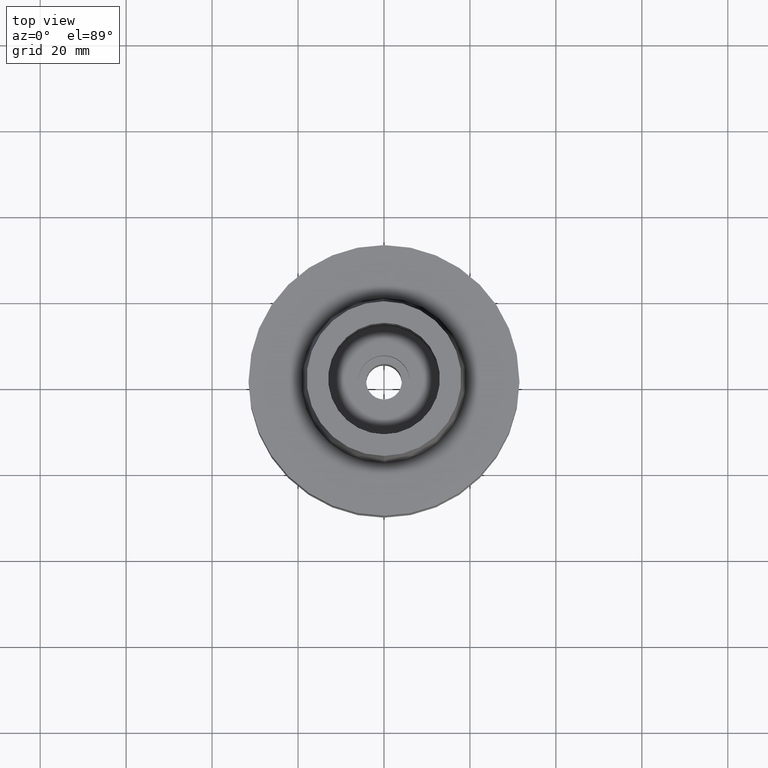
[diagram: clean part render]
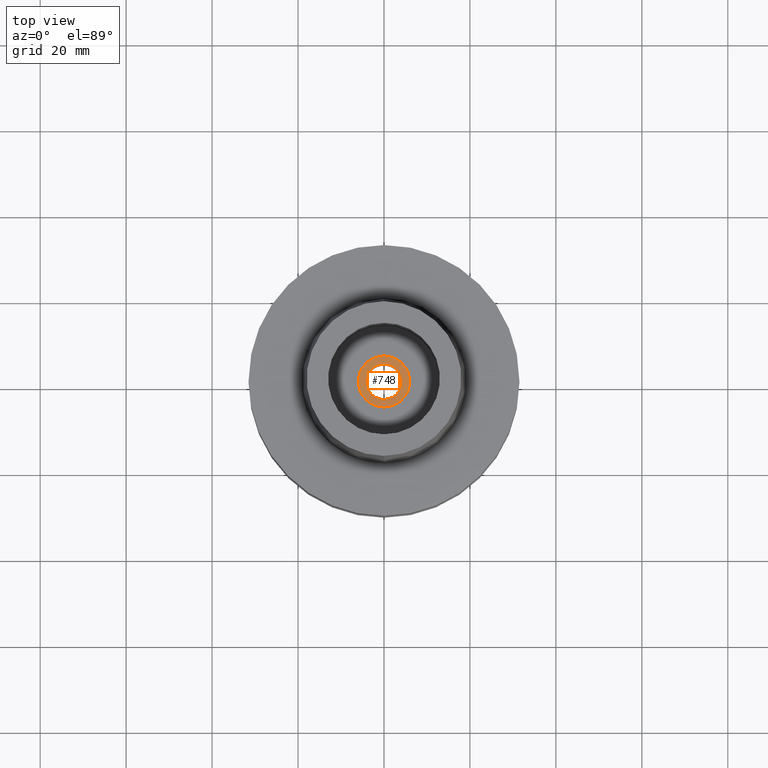
[diagram: same view with one face highlighted and labeled with its STEP entity id]
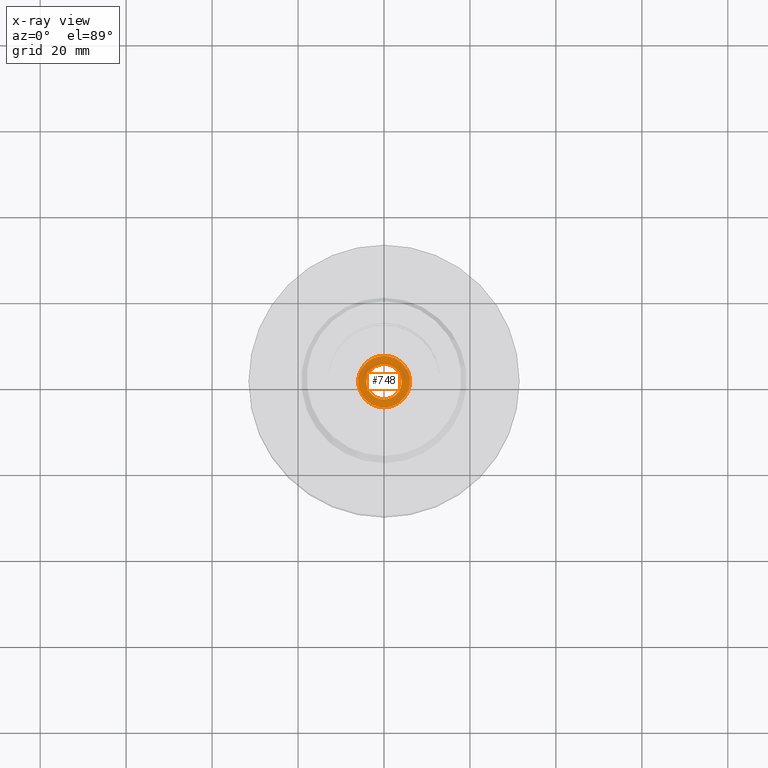
[diagram: x-ray of the same camera — body ghosted, the highlighted face saturated]
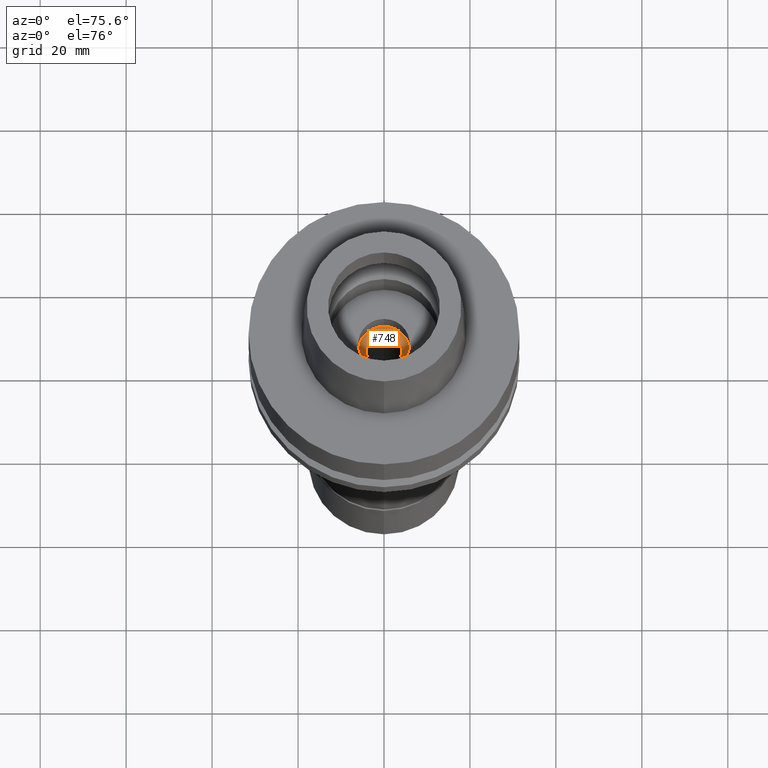
[diagram: same view with one face highlighted and labeled with its STEP entity id]
A machine part, top view. The second image highlights one B-rep face of the part: STEP entity #748.
The next image is the same camera in x-ray: the body ghosted, the highlighted face saturated — about 0% of this face is hidden behind the body in this view.
A second angle (auxiliary view) of the same face is appended — the face is thin or edge-on in the first view.
In plain terms, the highlighted planar face has unit normal (0, 0, 1).
Its self-contained STEP definition (entity closure, byte-faithful):
#14 = AXIS2_PLACEMENT_3D ( 'NONE', #1848, #1799, #2057 ) ;
#189 = ORIENTED_EDGE ( 'NONE', *, *, #2758, .F. ) ;
#199 = FACE_OUTER_BOUND ( 'NONE', #1960, .T. ) ;
#225 = DIRECTION ( 'NONE',  ( 0.0000000000000000000, 0.0000000000000000000, 1.000000000000000000 ) ) ;
#384 = EDGE_CURVE ( 'NONE', #1173, #1617, #2706, .T. ) ;
#403 = CIRCLE ( 'NONE', #2843, 6.000000000000000000 ) ;
#446 = CARTESIAN_POINT ( 'NONE',  ( 0.0000000000000000000, 0.0000000000000000000, -16.94999999999999929 ) ) ;
#561 = VERTEX_POINT ( 'NONE', #2064 ) ;
#737 = CARTESIAN_POINT ( 'NONE',  ( 0.0000000000000000000, 0.0000000000000000000, -16.94999999999999929 ) ) ;
#748 = ADVANCED_FACE ( 'NONE', ( #199, #1089 ), #1723, .T. ) ;
#756 = AXIS2_PLACEMENT_3D ( 'NONE', #446, #1963, #2192 ) ;
#877 = ORIENTED_EDGE ( 'NONE', *, *, #1395, .F. ) ;
#884 = DIRECTION ( 'NONE',  ( 0.0000000000000000000, 0.0000000000000000000, -1.000000000000000000 ) ) ;
#1086 = CARTESIAN_POINT ( 'NONE',  ( 0.0000000000000000000, 6.000000000000000000, -16.94999999999999929 ) ) ;
#1089 = FACE_BOUND ( 'NONE', #2533, .T. ) ;
#1118 = DIRECTION ( 'NONE',  ( 0.0000000000000000000, -1.000000000000000000, 0.0000000000000000000 ) ) ;
#1173 = VERTEX_POINT ( 'NONE', #1479 ) ;
#1352 = CARTESIAN_POINT ( 'NONE',  ( 0.0000000000000000000, 0.0000000000000000000, -16.94999999999999929 ) ) ;
#1395 = EDGE_CURVE ( 'NONE', #561, #1506, #2320, .T. ) ;
#1479 = CARTESIAN_POINT ( 'NONE',  ( 0.0000000000000000000, -4.125000000000000000, -16.94999999999999929 ) ) ;
#1506 = VERTEX_POINT ( 'NONE', #1086 ) ;
#1605 = CARTESIAN_POINT ( 'NONE',  ( 0.0000000000000000000, 4.125000000000000000, -16.94999999999999929 ) ) ;
#1617 = VERTEX_POINT ( 'NONE', #1605 ) ;
#1623 = DIRECTION ( 'NONE',  ( 0.0000000000000000000, 0.0000000000000000000, -1.000000000000000000 ) ) ;
#1723 = PLANE ( 'NONE',  #756 ) ;
#1759 = ORIENTED_EDGE ( 'NONE', *, *, #384, .F. ) ;
#1799 = DIRECTION ( 'NONE',  ( 0.0000000000000000000, 0.0000000000000000000, 1.000000000000000000 ) ) ;
#1848 = CARTESIAN_POINT ( 'NONE',  ( 0.0000000000000000000, 0.0000000000000000000, -16.94999999999999929 ) ) ;
#1916 = AXIS2_PLACEMENT_3D ( 'NONE', #737, #1623, #2495 ) ;
#1960 = EDGE_LOOP ( 'NONE', ( #189, #877 ) ) ;
#1963 = DIRECTION ( 'NONE',  ( 0.0000000000000000000, 0.0000000000000000000, 1.000000000000000000 ) ) ;
#2001 = CIRCLE ( 'NONE', #14, 4.125000000000000000 ) ;
#2057 = DIRECTION ( 'NONE',  ( 0.0000000000000000000, 1.000000000000000000, 0.0000000000000000000 ) ) ;
#2064 = CARTESIAN_POINT ( 'NONE',  ( 0.0000000000000000000, -6.000000000000000000, -16.94999999999999929 ) ) ;
#2190 = CARTESIAN_POINT ( 'NONE',  ( 0.0000000000000000000, 0.0000000000000000000, -16.94999999999999929 ) ) ;
#2192 = DIRECTION ( 'NONE',  ( 1.000000000000000000, 0.0000000000000000000, 0.0000000000000000000 ) ) ;
#2213 = EDGE_CURVE ( 'NONE', #1617, #1173, #2001, .T. ) ;
#2320 = CIRCLE ( 'NONE', #1916, 6.000000000000000000 ) ;
#2388 = AXIS2_PLACEMENT_3D ( 'NONE', #2190, #225, #1118 ) ;
#2418 = DIRECTION ( 'NONE',  ( 0.0000000000000000000, 1.000000000000000000, 0.0000000000000000000 ) ) ;
#2495 = DIRECTION ( 'NONE',  ( 0.0000000000000000000, -1.000000000000000000, 0.0000000000000000000 ) ) ;
#2533 = EDGE_LOOP ( 'NONE', ( #2564, #1759 ) ) ;
#2564 = ORIENTED_EDGE ( 'NONE', *, *, #2213, .F. ) ;
#2706 = CIRCLE ( 'NONE', #2388, 4.125000000000000000 ) ;
#2758 = EDGE_CURVE ( 'NONE', #1506, #561, #403, .T. ) ;
#2843 = AXIS2_PLACEMENT_3D ( 'NONE', #1352, #884, #2418 ) ;